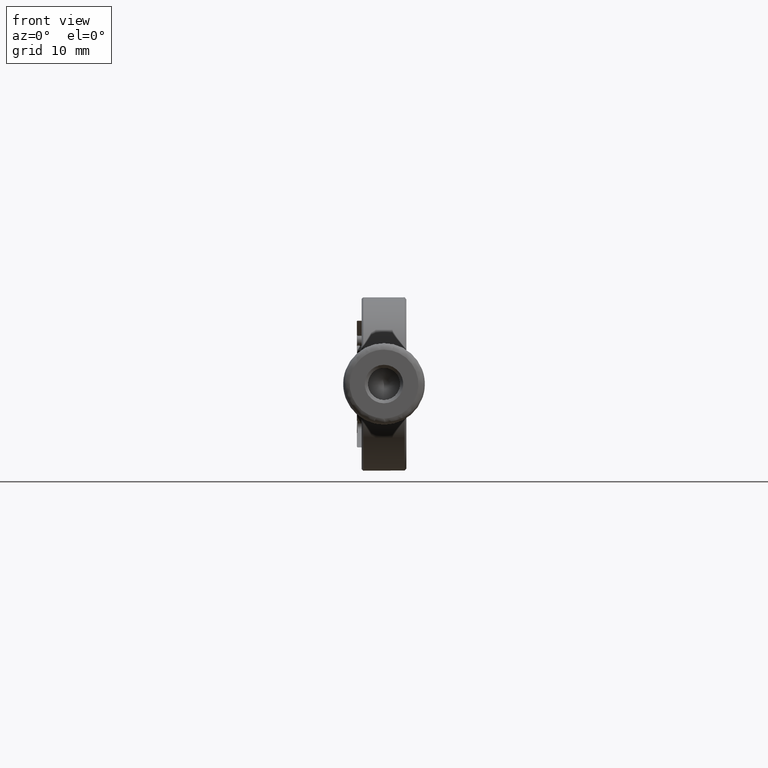
[diagram: clean part render]
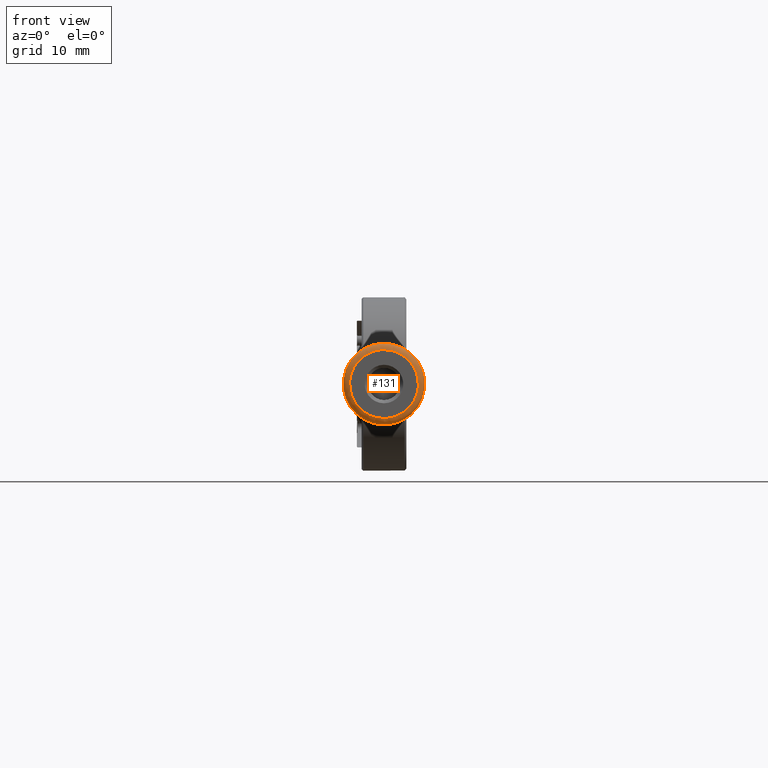
[diagram: same view with one face highlighted and labeled with its STEP entity id]
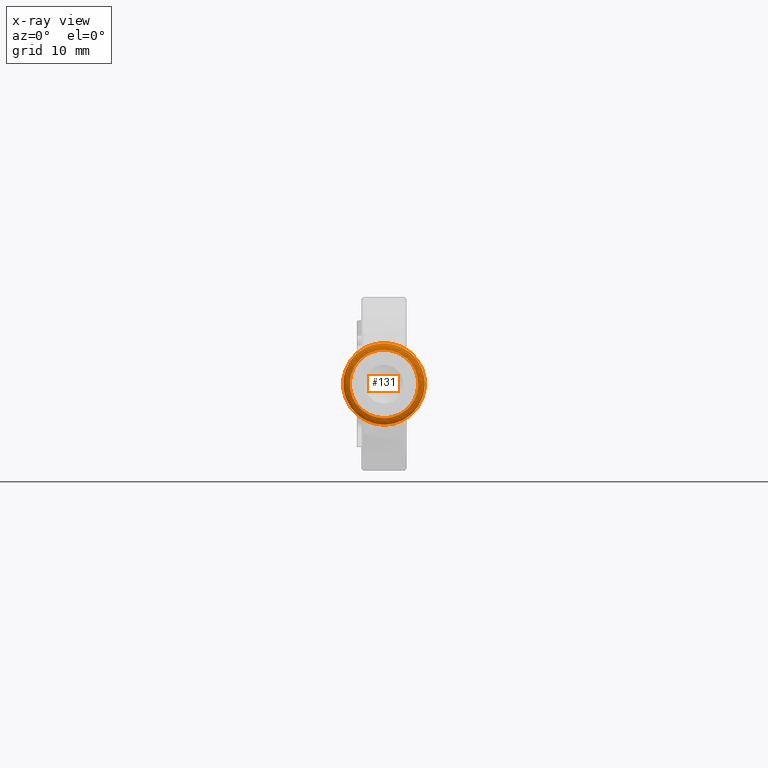
[diagram: x-ray of the same camera — body ghosted, the highlighted face saturated]
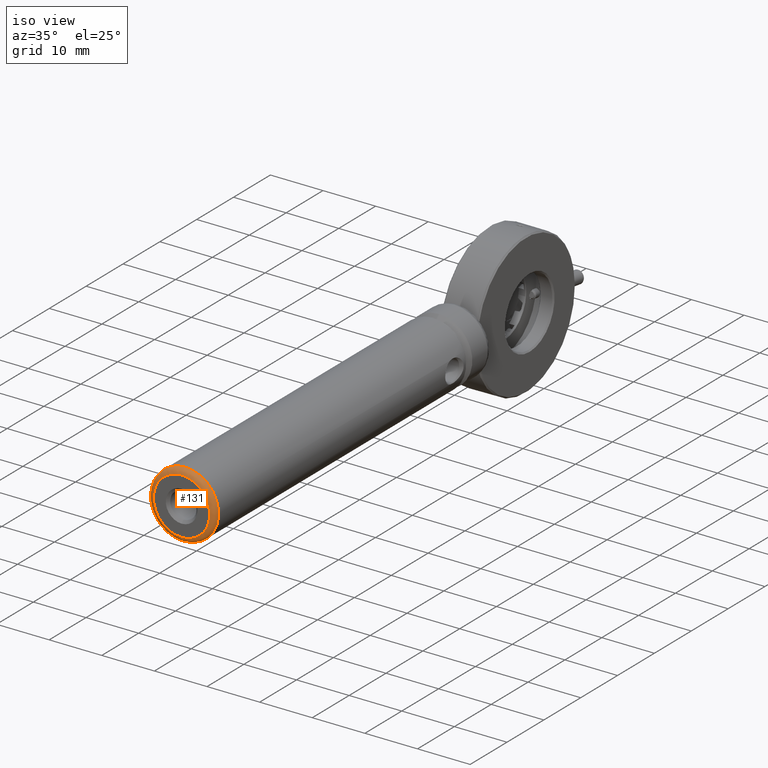
[diagram: same view with one face highlighted and labeled with its STEP entity id]
A machine part, front view. The second image highlights one B-rep face of the part: STEP entity #131.
The next image is the same camera in x-ray: the body ghosted, the highlighted face saturated — about 0% of this face is hidden behind the body in this view.
A second angle (iso view) of the same face is appended — the face is thin or edge-on in the first view.
In plain terms, the highlighted face is a freeform B-spline surface patch.
Its self-contained STEP definition (entity closure, byte-faithful):
#38 = EDGE_CURVE ( 'NONE', #5399, #6723, #637, .T. ) ;
#131 = ADVANCED_FACE ( 'NONE', ( #655, #10657 ), #9535, .T. ) ;
#135 = EDGE_LOOP ( 'NONE', ( #8831, #7591 ) ) ;
#234 = ORIENTED_EDGE ( 'NONE', *, *, #6131, .F. ) ;
#637 =( BOUNDED_CURVE ( )  B_SPLINE_CURVE ( 3, ( #8424, #3997, #1311, #4834 ),
 .UNSPECIFIED., .F., .F. ) 
 B_SPLINE_CURVE_WITH_KNOTS ( ( 4, 4 ),
 ( 0.000000000000000000, 1.000000000000000000 ),
 .UNSPECIFIED. ) 
 CURVE ( )  GEOMETRIC_REPRESENTATION_ITEM ( )  RATIONAL_B_SPLINE_CURVE ( ( 1.000000000000000000, 0.3333333333333333703, 0.3333333333333333703, 1.000000000000000000 ) ) 
 REPRESENTATION_ITEM ( '' )  );
#655 = FACE_OUTER_BOUND ( 'NONE', #3186, .T. ) ;
#715 = CARTESIAN_POINT ( 'NONE',  ( 7.354389209459749388, -84.56462418900876798, -24.21505932418128637 ) ) ;
#909 = CARTESIAN_POINT ( 'NONE',  ( 7.354389209459750276, -84.56462418900876798, -35.50084576180818630 ) ) ;
#1311 = CARTESIAN_POINT ( 'NONE',  ( -3.345610790540250346, -84.56462418900876798, -24.80084576180819411 ) ) ;
#1418 = CARTESIAN_POINT ( 'NONE',  ( 7.354389209459749388, -84.56462418900876798, -24.80084576180818701 ) ) ;
#1475 = CARTESIAN_POINT ( 'NONE',  ( 7.354389209459749388, -84.15041062663568994, -23.80084576180818345 ) ) ;
#1590 = CARTESIAN_POINT ( 'NONE',  ( 7.354389209459749388, -84.15041062663568994, -23.80084576180818345 ) ) ;
#2262 = CARTESIAN_POINT ( 'NONE',  ( 20.05438920945975312, -83.56462418900876798, -23.80084576180818345 ) ) ;
#2314 = CARTESIAN_POINT ( 'NONE',  ( 20.05438920945975667, -84.15041062663567573, -36.50084576180818630 ) ) ;
#3186 = EDGE_LOOP ( 'NONE', ( #234 ) ) ;
#3266 = CARTESIAN_POINT ( 'NONE',  ( 19.22596208471355794, -84.56462418900876798, -24.21505932418128282 ) ) ;
#3322 = CARTESIAN_POINT ( 'NONE',  ( 19.22596208471356150, -84.56462418900876798, -36.08663219943510114 ) ) ;
#3387 = CARTESIAN_POINT ( 'NONE',  ( 7.354389209459749388, -83.56462418900876798, -23.80084576180818701 ) ) ;
#3446 = CARTESIAN_POINT ( 'NONE',  ( -4.517183665794061831, -84.56462418900876798, -24.21505932418128282 ) ) ;
#3597 = CIRCLE ( 'NONE', #6258, 6.350000000000001421 ) ;
#3997 = CARTESIAN_POINT ( 'NONE',  ( -3.345610790540249457, -84.56462418900876798, -35.50084576180817919 ) ) ;
#4105 = CARTESIAN_POINT ( 'NONE',  ( 7.354389209459749388, -84.56462418900876798, -24.80084576180818701 ) ) ;
#4167 = CARTESIAN_POINT ( 'NONE',  ( 7.354389209459749388, -84.15041062663568994, -36.50084576180819340 ) ) ;
#4282 = CARTESIAN_POINT ( 'NONE',  ( -5.345610790540253454, -83.56462418900876798, -36.50084576180819340 ) ) ;
#4293 = CARTESIAN_POINT ( 'NONE',  ( 7.354389209459750276, -84.56462418900876798, -35.50084576180818630 ) ) ;
#4458 = VERTEX_POINT ( 'NONE', #5012 ) ;
#4571 = CARTESIAN_POINT ( 'NONE',  ( 7.354389209459749388, -83.56462418900876798, -30.15084576180818843 ) ) ;
#4834 = CARTESIAN_POINT ( 'NONE',  ( 7.354389209459749388, -84.56462418900876798, -24.80084576180818701 ) ) ;
#5012 = CARTESIAN_POINT ( 'NONE',  ( 7.354389209459749388, -83.56462418900876798, -36.50084576180819340 ) ) ;
#5126 = CARTESIAN_POINT ( 'NONE',  ( 7.354389209459749388, -84.56462418900876798, -35.50084576180818630 ) ) ;
#5181 = CARTESIAN_POINT ( 'NONE',  ( -4.517183665794060055, -84.56462418900876798, -36.08663219943510114 ) ) ;
#5238 = CARTESIAN_POINT ( 'NONE',  ( 7.354389209459749388, -84.56462418900876798, -24.21505932418128637 ) ) ;
#5399 = VERTEX_POINT ( 'NONE', #4293 ) ;
#5900 = CARTESIAN_POINT ( 'NONE',  ( -5.345610790540252566, -84.15041062663567573, -36.50084576180818630 ) ) ;
#6074 = CARTESIAN_POINT ( 'NONE',  ( 7.354389209459749388, -84.56462418900876798, -36.08663219943508693 ) ) ;
#6130 = CARTESIAN_POINT ( 'NONE',  ( 20.05438920945975312, -83.56462418900876798, -36.50084576180819340 ) ) ;
#6131 = EDGE_CURVE ( 'NONE', #4458, #4458, #3597, .T. ) ;
#6258 = AXIS2_PLACEMENT_3D ( 'NONE', #4571, #10755, #10641 ) ;
#6723 = VERTEX_POINT ( 'NONE', #10549 ) ;
#6856 = CARTESIAN_POINT ( 'NONE',  ( 20.05438920945975312, -84.15041062663567573, -23.80084576180818701 ) ) ;
#6963 = CARTESIAN_POINT ( 'NONE',  ( -3.345610790540252122, -84.56462418900875377, -35.50084576180818630 ) ) ;
#7004 = EDGE_CURVE ( 'NONE', #6723, #5399, #11212, .T. ) ;
#7591 = ORIENTED_EDGE ( 'NONE', *, *, #38, .T. ) ;
#7745 = CARTESIAN_POINT ( 'NONE',  ( 18.05438920945975312, -84.56462418900875377, -35.50084576180818630 ) ) ;
#7993 = CARTESIAN_POINT ( 'NONE',  ( -3.345610790540252122, -84.56462418900875377, -24.80084576180819056 ) ) ;
#8424 = CARTESIAN_POINT ( 'NONE',  ( 7.354389209459750276, -84.56462418900876798, -35.50084576180818630 ) ) ;
#8831 = ORIENTED_EDGE ( 'NONE', *, *, #7004, .T. ) ;
#8874 = CARTESIAN_POINT ( 'NONE',  ( -5.345610790540255230, -84.15041062663567573, -23.80084576180818701 ) ) ;
#9071 = CARTESIAN_POINT ( 'NONE',  ( 7.354389209459749388, -84.56462418900876798, -24.80084576180818701 ) ) ;
#9535 =( BOUNDED_SURFACE ( )  B_SPLINE_SURFACE ( 3, 3, ( 
 ( #11552, #2262, #6130, #10534, #4282, #11490, #3387 ),
 ( #1590, #6856, #2314, #4167, #5900, #8874, #1475 ),
 ( #5238, #3266, #3322, #6074, #5181, #3446, #715 ),
 ( #4105, #10593, #7745, #5126, #6963, #7993, #1418 ) ),
 .UNSPECIFIED., .F., .T., .F. ) 
 B_SPLINE_SURFACE_WITH_KNOTS ( ( 4, 4 ),
 ( 4, 3, 4 ),
 ( 0.000000000000000000, 1.000000000000000000 ),
 ( 0.000000000000000000, 0.5000000000000000000, 1.000000000000000000 ),
 .UNSPECIFIED. ) 
 GEOMETRIC_REPRESENTATION_ITEM ( )  RATIONAL_B_SPLINE_SURFACE ( (
 ( 1.000000000000000000, 0.3333333333333333148, 0.3333333333333333148, 1.000000000000000000, 0.3333333333333333148, 0.3333333333333333148, 1.000000000000000000),
 ( 0.8047378541243649375, 0.2682459513747882940, 0.2682459513747882940, 0.8047378541243649375, 0.2682459513747882940, 0.2682459513747882940, 0.8047378541243649375),
 ( 0.8047378541243649375, 0.2682459513747882940, 0.2682459513747882940, 0.8047378541243649375, 0.2682459513747882940, 0.2682459513747882940, 0.8047378541243649375),
 ( 1.000000000000000000, 0.3333333333333333148, 0.3333333333333333148, 1.000000000000000000, 0.3333333333333333148, 0.3333333333333333148, 1.000000000000000000) ) ) 
 REPRESENTATION_ITEM ( '' )  SURFACE ( )  );
#10534 = CARTESIAN_POINT ( 'NONE',  ( 7.354389209459749388, -83.56462418900876798, -36.50084576180819340 ) ) ;
#10549 = CARTESIAN_POINT ( 'NONE',  ( 7.354389209459749388, -84.56462418900876798, -24.80084576180818701 ) ) ;
#10593 = CARTESIAN_POINT ( 'NONE',  ( 18.05438920945975312, -84.56462418900875377, -24.80084576180819056 ) ) ;
#10641 = DIRECTION ( 'NONE',  ( 0.000000000000000000, 0.000000000000000000, -1.000000000000000000 ) ) ;
#10657 = FACE_OUTER_BOUND ( 'NONE', #135, .T. ) ;
#10755 = DIRECTION ( 'NONE',  ( 0.000000000000000000, 1.000000000000000000, 0.000000000000000000 ) ) ;
#10916 = CARTESIAN_POINT ( 'NONE',  ( 18.05438920945974601, -84.56462418900876798, -24.80084576180819411 ) ) ;
#11035 = CARTESIAN_POINT ( 'NONE',  ( 18.05438920945974601, -84.56462418900876798, -35.50084576180817919 ) ) ;
#11212 =( BOUNDED_CURVE ( )  B_SPLINE_CURVE ( 3, ( #9071, #10916, #11035, #909 ),
 .UNSPECIFIED., .F., .T. ) 
 B_SPLINE_CURVE_WITH_KNOTS ( ( 4, 4 ),
 ( 0.000000000000000000, 1.000000000000000000 ),
 .UNSPECIFIED. ) 
 CURVE ( )  GEOMETRIC_REPRESENTATION_ITEM ( )  RATIONAL_B_SPLINE_CURVE ( ( 1.000000000000000000, 0.3333333333333333703, 0.3333333333333333703, 1.000000000000000000 ) ) 
 REPRESENTATION_ITEM ( '' )  );
#11490 = CARTESIAN_POINT ( 'NONE',  ( -5.345610790540253454, -83.56462418900876798, -23.80084576180818345 ) ) ;
#11552 = CARTESIAN_POINT ( 'NONE',  ( 7.354389209459749388, -83.56462418900876798, -23.80084576180818701 ) ) ;